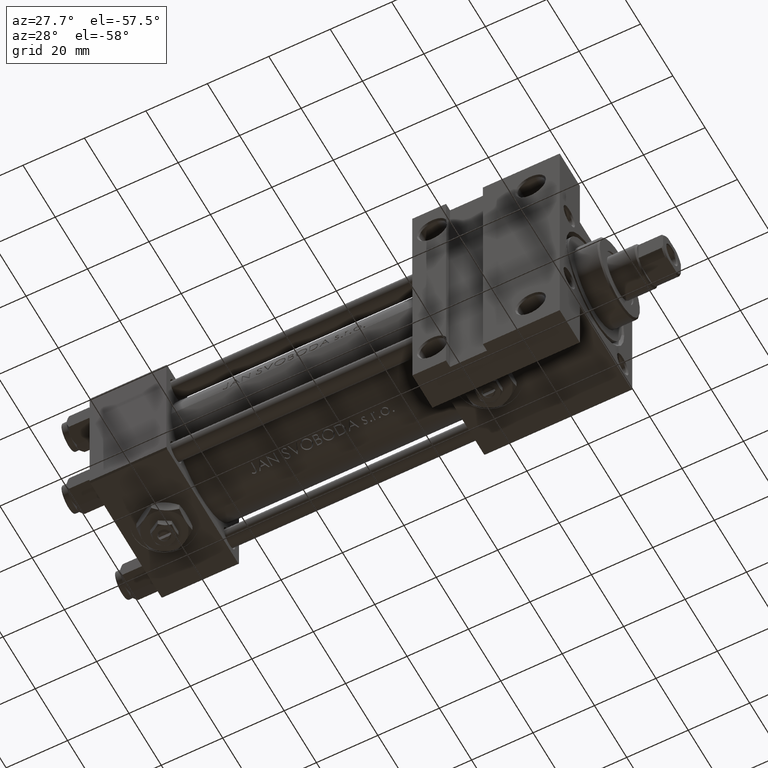
[diagram: clean part render]
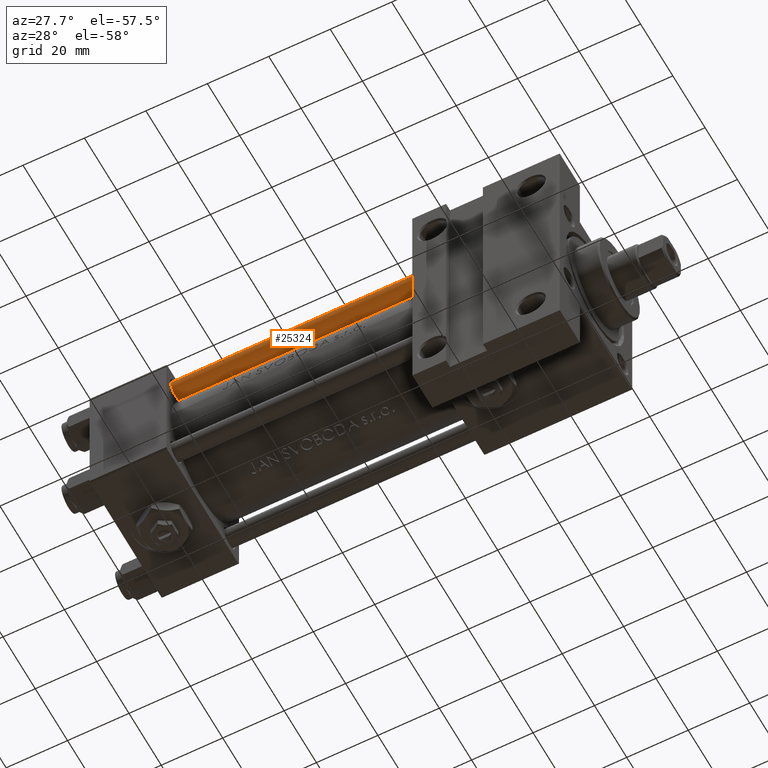
[diagram: same view with one face highlighted and labeled with its STEP entity id]
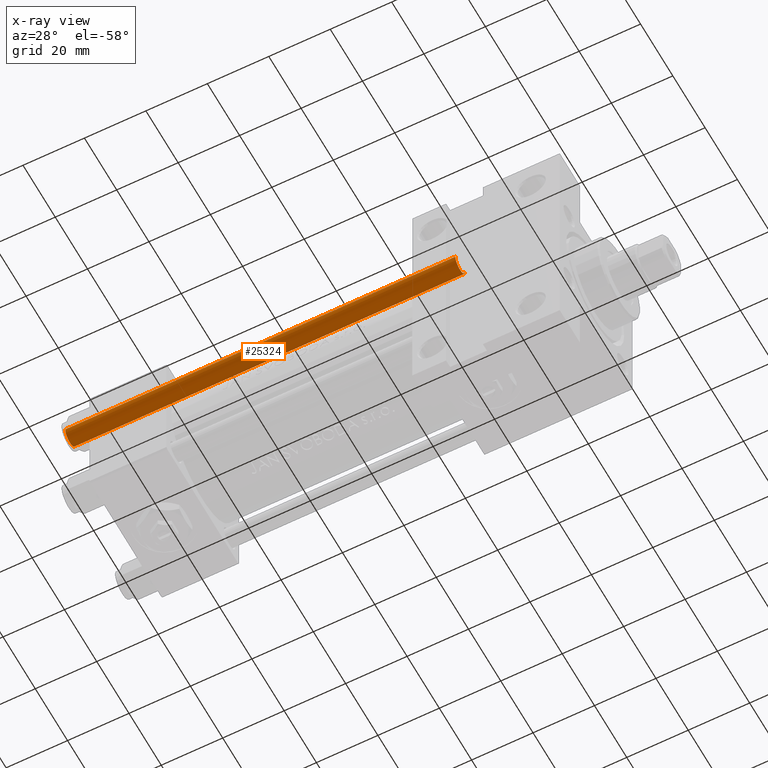
[diagram: x-ray of the same camera — body ghosted, the highlighted face saturated]
A machine part, auxiliary view. The second image highlights one B-rep face of the part: STEP entity #25324.
The next image is the same camera in x-ray: the body ghosted, the highlighted face saturated — about 0% of this face is hidden behind the body in this view.
In plain terms, the highlighted cylindrical surface (edge-blend (fillet) strip) has radius 3 mm, axis along (-1, 0, 0).
Its self-contained STEP definition (entity closure, byte-faithful):
#584 = FACE_OUTER_BOUND ( 'NONE', #13499, .T. ) ;
#2981 = CARTESIAN_POINT ( 'NONE',  ( -3.000000000000000444, 0.000000000000000000, 0.5000000000000281997 ) ) ;
#3672 = EDGE_CURVE ( 'NONE', #12761, #48065, #38319, .T. ) ;
#5389 = CIRCLE ( 'NONE', #19031, 3.000000000000000444 ) ;
#6064 = DIRECTION ( 'NONE',  ( -0.000000000000000000, -0.000000000000000000, -1.000000000000000000 ) ) ;
#6483 = AXIS2_PLACEMENT_3D ( 'NONE', #29553, #22260, #37118 ) ;
#7117 = ORIENTED_EDGE ( 'NONE', *, *, #26572, .F. ) ;
#8692 = CARTESIAN_POINT ( 'NONE',  ( -3.000000000000000444, 0.000000000000000000, 128.0000000000000000 ) ) ;
#8777 = ORIENTED_EDGE ( 'NONE', *, *, #34462, .T. ) ;
#8940 = VERTEX_POINT ( 'NONE', #35453 ) ;
#11521 = DIRECTION ( 'NONE',  ( -0.000000000000000000, -0.000000000000000000, 1.000000000000000000 ) ) ;
#12178 = EDGE_CURVE ( 'NONE', #48065, #25790, #5389, .T. ) ;
#12761 = VERTEX_POINT ( 'NONE', #47809 ) ;
#13499 = EDGE_LOOP ( 'NONE', ( #8777, #46987, #42046, #7117 ) ) ;
#15179 = VECTOR ( 'NONE', #24010, 1000.000000000000000 ) ;
#19031 = AXIS2_PLACEMENT_3D ( 'NONE', #42455, #11521, #38185 ) ;
#22260 = DIRECTION ( 'NONE',  ( 0.000000000000000000, 0.000000000000000000, -1.000000000000000000 ) ) ;
#23459 = DIRECTION ( 'NONE',  ( -0.000000000000000000, -0.000000000000000000, -1.000000000000000000 ) ) ;
#23960 = AXIS2_PLACEMENT_3D ( 'NONE', #26699, #6064, #43314 ) ;
#24010 = DIRECTION ( 'NONE',  ( -0.000000000000000000, -0.000000000000000000, -1.000000000000000000 ) ) ;
#25324 = ADVANCED_FACE ( 'NONE', ( #584 ), #35514, .T. ) ;
#25790 = VERTEX_POINT ( 'NONE', #2981 ) ;
#26572 = EDGE_CURVE ( 'NONE', #8940, #25790, #31549, .T. ) ;
#26699 = CARTESIAN_POINT ( 'NONE',  ( 0.000000000000000000, 0.000000000000000000, 128.0000000000000000 ) ) ;
#29553 = CARTESIAN_POINT ( 'NONE',  ( 0.000000000000000000, 0.000000000000000000, 127.4999999999999716 ) ) ;
#31549 = LINE ( 'NONE', #8692, #15179 ) ;
#34462 = EDGE_CURVE ( 'NONE', #8940, #12761, #43432, .T. ) ;
#35453 = CARTESIAN_POINT ( 'NONE',  ( -3.000000000000000444, 0.000000000000000000, 127.4999999999999716 ) ) ;
#35514 = CYLINDRICAL_SURFACE ( 'NONE', #23960, 3.000000000000000444 ) ;
#37118 = DIRECTION ( 'NONE',  ( 1.000000000000000000, 0.000000000000000000, 0.000000000000000000 ) ) ;
#38185 = DIRECTION ( 'NONE',  ( 1.000000000000000000, 0.000000000000000000, 0.000000000000000000 ) ) ;
#38319 = LINE ( 'NONE', #45865, #45358 ) ;
#42046 = ORIENTED_EDGE ( 'NONE', *, *, #12178, .T. ) ;
#42455 = CARTESIAN_POINT ( 'NONE',  ( 0.000000000000000000, 0.000000000000000000, 0.5000000000000281997 ) ) ;
#43314 = DIRECTION ( 'NONE',  ( -1.000000000000000000, 0.000000000000000000, 0.000000000000000000 ) ) ;
#43432 = CIRCLE ( 'NONE', #6483, 3.000000000000000444 ) ;
#45358 = VECTOR ( 'NONE', #23459, 1000.000000000000000 ) ;
#45865 = CARTESIAN_POINT ( 'NONE',  ( 3.000000000000000444, 3.673940397442060361E-16, 128.0000000000000000 ) ) ;
#46453 = CARTESIAN_POINT ( 'NONE',  ( 3.000000000000000444, 3.673940397442060361E-16, 0.5000000000000281997 ) ) ;
#46987 = ORIENTED_EDGE ( 'NONE', *, *, #3672, .T. ) ;
#47809 = CARTESIAN_POINT ( 'NONE',  ( 3.000000000000000444, 3.673940397442060361E-16, 127.4999999999999716 ) ) ;
#48065 = VERTEX_POINT ( 'NONE', #46453 ) ;